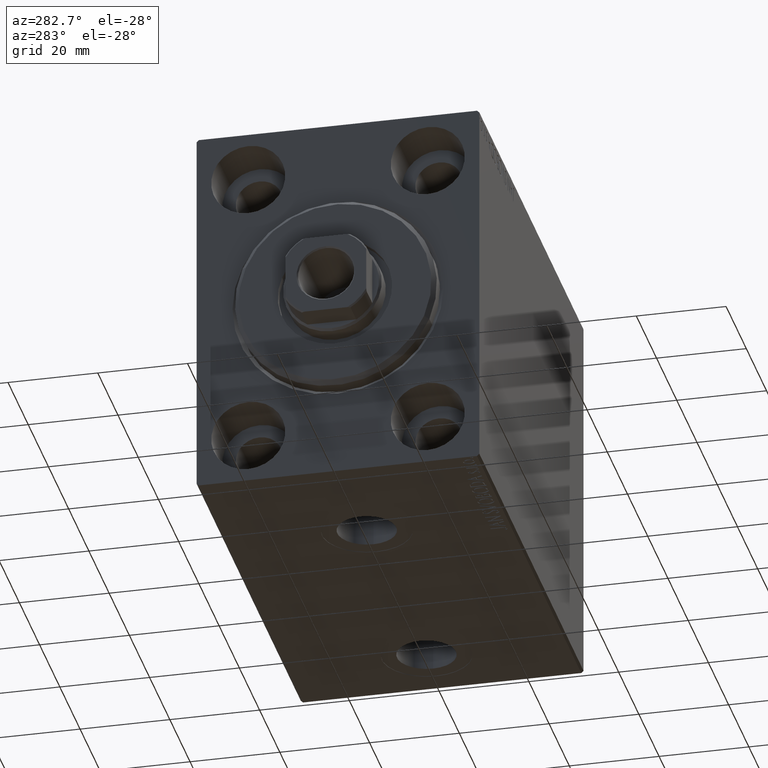
[diagram: clean part render]
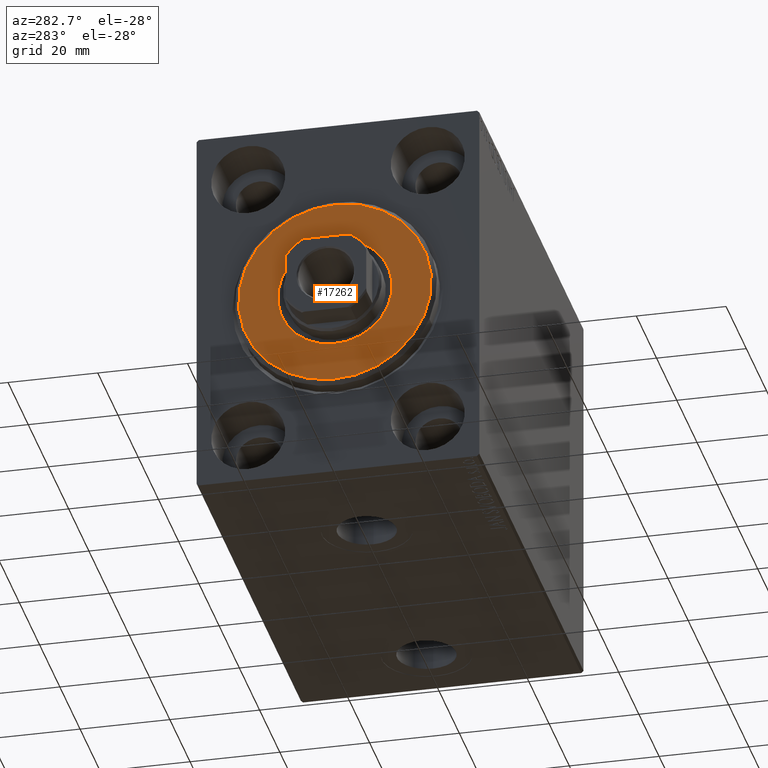
[diagram: same view with one face highlighted and labeled with its STEP entity id]
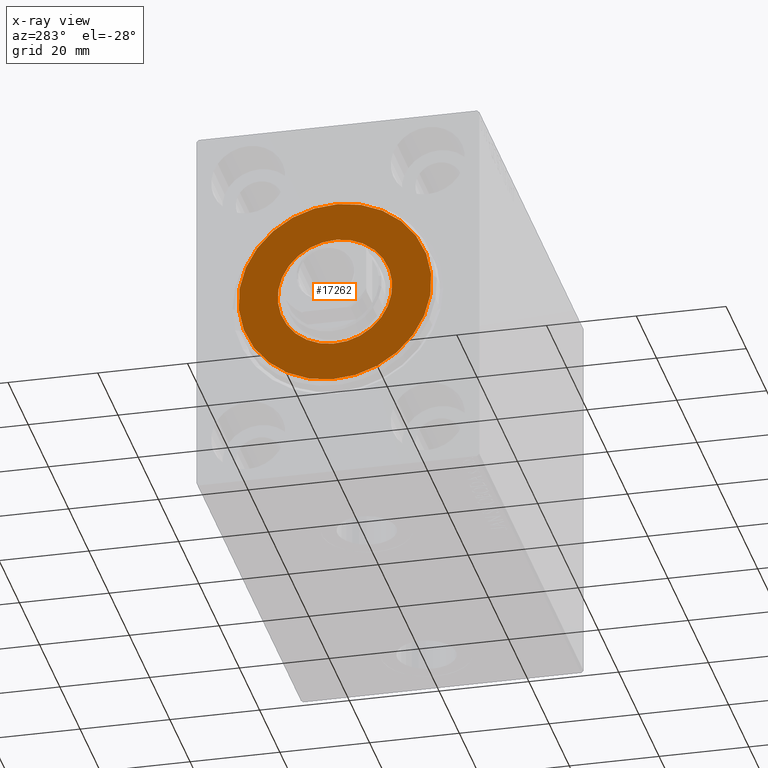
[diagram: x-ray of the same camera — body ghosted, the highlighted face saturated]
A machine part, auxiliary view. The second image highlights one B-rep face of the part: STEP entity #17262.
The next image is the same camera in x-ray: the body ghosted, the highlighted face saturated — about 0% of this face is hidden behind the body in this view.
In plain terms, the highlighted planar face has unit normal (-1, 0, 0).
Its self-contained STEP definition (entity closure, byte-faithful):
#12 = CARTESIAN_POINT ( 'NONE',  ( 3.000000000000000000, 0.000000000000000000, 0.000000000000000000 ) ) ;
#1120 = FACE_BOUND ( 'NONE', #33119, .T. ) ;
#2638 = DIRECTION ( 'NONE',  ( -1.000000000000000000, 0.000000000000000000, -0.000000000000000000 ) ) ;
#5697 = AXIS2_PLACEMENT_3D ( 'NONE', #33344, #26485, #20086 ) ;
#6502 = CARTESIAN_POINT ( 'NONE',  ( 3.000000000000000000, 0.000000000000000000, 0.000000000000000000 ) ) ;
#6859 = DIRECTION ( 'NONE',  ( -1.000000000000000000, 0.000000000000000000, -0.000000000000000000 ) ) ;
#7146 = CIRCLE ( 'NONE', #12979, 12.75000000000000000 ) ;
#7967 = CIRCLE ( 'NONE', #39336, 21.50000000000000355 ) ;
#8089 = DIRECTION ( 'NONE',  ( 1.000000000000000000, -0.000000000000000000, 0.000000000000000000 ) ) ;
#8442 = ORIENTED_EDGE ( 'NONE', *, *, #42106, .T. ) ;
#8582 = AXIS2_PLACEMENT_3D ( 'NONE', #13201, #19843, #12520 ) ;
#10117 = CARTESIAN_POINT ( 'NONE',  ( 3.000000000000000000, 2.694222958124177598E-15, -21.50000000000000355 ) ) ;
#10935 = CARTESIAN_POINT ( 'NONE',  ( 3.000000000000000000, 0.000000000000000000, 12.75000000000000000 ) ) ;
#12520 = DIRECTION ( 'NONE',  ( 0.000000000000000000, 0.000000000000000000, -1.000000000000000000 ) ) ;
#12979 = AXIS2_PLACEMENT_3D ( 'NONE', #12, #6859, #17829 ) ;
#13201 = CARTESIAN_POINT ( 'NONE',  ( 3.000000000000000000, 0.000000000000000000, 0.000000000000000000 ) ) ;
#14499 = VERTEX_POINT ( 'NONE', #27447 ) ;
#14876 = ORIENTED_EDGE ( 'NONE', *, *, #18986, .T. ) ;
#17262 = ADVANCED_FACE ( 'NONE', ( #25788, #1120 ), #36759, .T. ) ;
#17829 = DIRECTION ( 'NONE',  ( 0.000000000000000000, 0.000000000000000000, -1.000000000000000000 ) ) ;
#18933 = AXIS2_PLACEMENT_3D ( 'NONE', #23875, #2638, #23199 ) ;
#18986 = EDGE_CURVE ( 'NONE', #18994, #26226, #21008, .T. ) ;
#18994 = VERTEX_POINT ( 'NONE', #44093 ) ;
#19843 = DIRECTION ( 'NONE',  ( 1.000000000000000000, -0.000000000000000000, 0.000000000000000000 ) ) ;
#20086 = DIRECTION ( 'NONE',  ( 0.000000000000000000, 0.000000000000000000, -1.000000000000000000 ) ) ;
#21008 = CIRCLE ( 'NONE', #5697, 21.50000000000000355 ) ;
#21390 = EDGE_CURVE ( 'NONE', #26226, #18994, #7967, .T. ) ;
#22116 = EDGE_CURVE ( 'NONE', #14499, #34143, #37913, .T. ) ;
#23199 = DIRECTION ( 'NONE',  ( 0.000000000000000000, 0.000000000000000000, -1.000000000000000000 ) ) ;
#23875 = CARTESIAN_POINT ( 'NONE',  ( 3.000000000000000000, 0.000000000000000000, 0.000000000000000000 ) ) ;
#24885 = ORIENTED_EDGE ( 'NONE', *, *, #21390, .T. ) ;
#25788 = FACE_OUTER_BOUND ( 'NONE', #35638, .T. ) ;
#26226 = VERTEX_POINT ( 'NONE', #10117 ) ;
#26485 = DIRECTION ( 'NONE',  ( 1.000000000000000000, -0.000000000000000000, 0.000000000000000000 ) ) ;
#27447 = CARTESIAN_POINT ( 'NONE',  ( 3.000000000000000000, 1.561424668912874914E-15, -12.75000000000000000 ) ) ;
#33119 = EDGE_LOOP ( 'NONE', ( #8442, #40845 ) ) ;
#33344 = CARTESIAN_POINT ( 'NONE',  ( 3.000000000000000000, 0.000000000000000000, 0.000000000000000000 ) ) ;
#34143 = VERTEX_POINT ( 'NONE', #10935 ) ;
#35638 = EDGE_LOOP ( 'NONE', ( #14876, #24885 ) ) ;
#36759 = PLANE ( 'NONE',  #8582 ) ;
#37913 = CIRCLE ( 'NONE', #18933, 12.75000000000000000 ) ;
#39336 = AXIS2_PLACEMENT_3D ( 'NONE', #6502, #8089, #42604 ) ;
#40845 = ORIENTED_EDGE ( 'NONE', *, *, #22116, .T. ) ;
#42106 = EDGE_CURVE ( 'NONE', #34143, #14499, #7146, .T. ) ;
#42604 = DIRECTION ( 'NONE',  ( 0.000000000000000000, 0.000000000000000000, -1.000000000000000000 ) ) ;
#44093 = CARTESIAN_POINT ( 'NONE',  ( 3.000000000000000000, 0.000000000000000000, 21.50000000000000355 ) ) ;